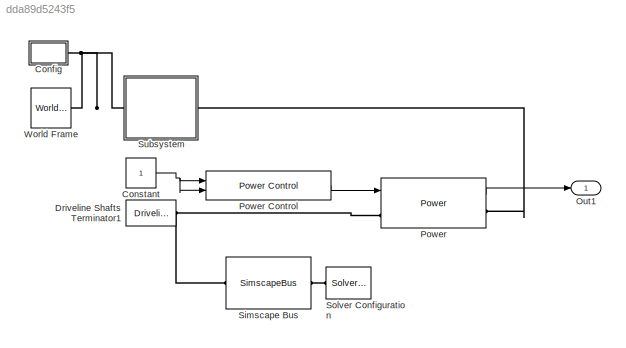
MODEL slx_dda89d5243f5
KIND model
CONFIG AbsTol = auto
CONFIG EnableMultiTasking = off
CONFIG FixedStep = auto
CONFIG MaxStep = auto
CONFIG MinStep = auto
CONFIG RelTol = 1e-3
CONFIG SampleTimeConstraint = Unconstrained
CONFIG SolverName = VariableStepAuto
CONFIG StartTime = 0.0
CONFIG StopTime = 10.0
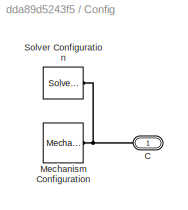
BLOCK [SubSystem] Config
  Ports = [0, 0, 0, 0, 0, 0, 1]
  RequestExecContextInheritance = off
BLOCK [PMIOPort] Config/C
  Side = Right
BLOCK [Reference] Config/Mechanism Configuration  REF=sm_lib/Utilities/Mechanism
Configuration
  Ports = [0, 0, 0, 0, 0, 0, 1]
  SourceBlock = sm_lib/Utilities/Mechanism\nConfiguration
  SourceProductBaseCode = MS
  SourceType = Mechanism\nConfiguration
BLOCK [Reference] Config/Solver Configuration  REF=nesl_utility/Solver
Configuration
  Ports = [0, 0, 0, 0, 0, 0, 1]
  SourceBlock = nesl_utility/Solver\nConfiguration
  SourceProductBaseCode = SS,PW,VE
  SourceType = Solver\nConfiguration
BLOCK [Constant] Constant
BLOCK [Reference] Driveline Shafts Terminator1  REF=sm_car_lib/Driveline/Driveline Shafts  (lib defined in slx_05426f0848b6, slx_5dc2867fb1c9)
Terminator
  Ports = [0, 0, 0, 0, 0, 0, 1]
  SourceBlock = sm_car_lib/Driveline/Driveline Shafts\nTerminator
  SourceType = SubSystem
BLOCK [Outport] Out1
  AttributesFormatString = %<OutDataTypeStr>
  OutDataTypeStr = Bus: VehiclePowerBusDef
  VectorParamsAs1DForOutWhenUnconnected = off
BLOCK [Reference] Power  REF=Power_Systems/Power
  AttributesFormatString = %<ActiveVariant>
  Ports = [2, 1, 0, 0, 0, 1, 1]
  SourceBlock = Power_Systems/Power
  SourceType = Variants for Power
BLOCK [Reference] Power Control  REF=sm_car_lib/Control/Power Control  (lib defined in slx_05426f0848b6, slx_5dc2867fb1c9)
  Ports = [2, 1]
  SourceBlock = sm_car_lib/Control/Power Control
BLOCK [SimscapeBus] Simscape Bus
  HierarchyStrings = ShaftF
  NameLocation = top
  Ports = [0, 0, 0, 0, 0, 1, 1]
BLOCK [Reference] Solver Configuration  REF=nesl_utility/Solver
Configuration
  NameLocation = top
  Ports = [0, 0, 0, 0, 0, 0, 1]
  SourceBlock = nesl_utility/Solver\nConfiguration
  SourceProductBaseCode = SS,PW,VE
  SourceType = Solver\nConfiguration
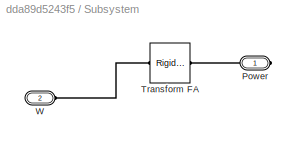
BLOCK [SubSystem] Subsystem
  Ports = [0, 0, 0, 0, 0, 1, 1]
  RequestExecContextInheritance = off
BLOCK [PMIOPort] Subsystem/Power
  Side = Right
BLOCK [Reference] Subsystem/Transform FA   REF=sm_lib/Frames and
Transforms/Rigid
Transform
  Ports = [0, 0, 0, 0, 0, 1, 1]
  SourceBlock = sm_lib/Frames and\nTransforms/Rigid\nTransform
  SourceProductBaseCode = MS
  SourceType = Rigid\nTransform
BLOCK [PMIOPort] Subsystem/W
  Port = 2
  Side = Left
BLOCK [Reference] World Frame  REF=sm_lib/Frames and
Transforms/World Frame
  Ports = [0, 0, 0, 0, 0, 0, 1]
  SourceBlock = sm_lib/Frames and\nTransforms/World Frame
  SourceProductBaseCode = MS
  SourceType = World Frame
NET Constant:1 -> Power Control:1, Power Control:2
LINE Power Control:1 -> Power:1
LINE Power:1 -> Out1:1
PNET net1: Config/C:RConn1 -- Config/Mechanism Configuration:RConn1 -- Config/Solver Configuration:RConn1
PNET net2: Config:RConn1 -- Subsystem:LConn1 -- World Frame:RConn1
PNET net3: Driveline Shafts Terminator1:RConn1 -- Power:LConn1 -- Simscape Bus:RConn1
PLINE Power:RConn1 -- Subsystem:RConn1
PLINE Simscape Bus:LConn1 -- Solver Configuration:RConn1
PLINE Subsystem/Power:RConn1 -- Subsystem/Transform FA :RConn1
PLINE Subsystem/Transform FA :LConn1 -- Subsystem/W:RConn1
note: NET lines group one-source signal fan-out (src -> all destinations, sorted); 1:1 wires keep LINE; PNET lines group multi-terminal physical nets as a canonical sorted terminal list (undirected conserving connections); 2-terminal nets keep the pairwise PLINE form
